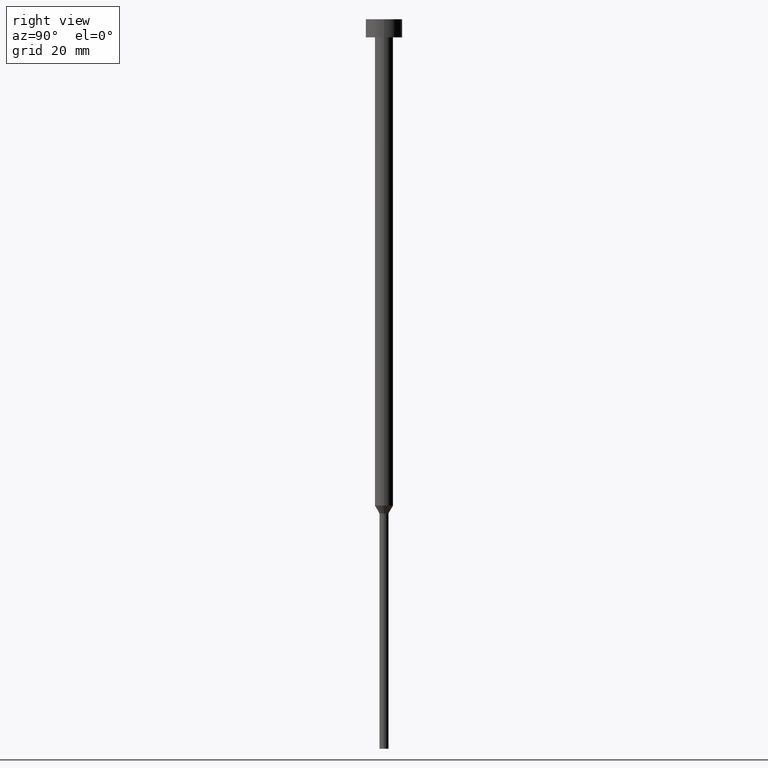
[diagram: clean part render]
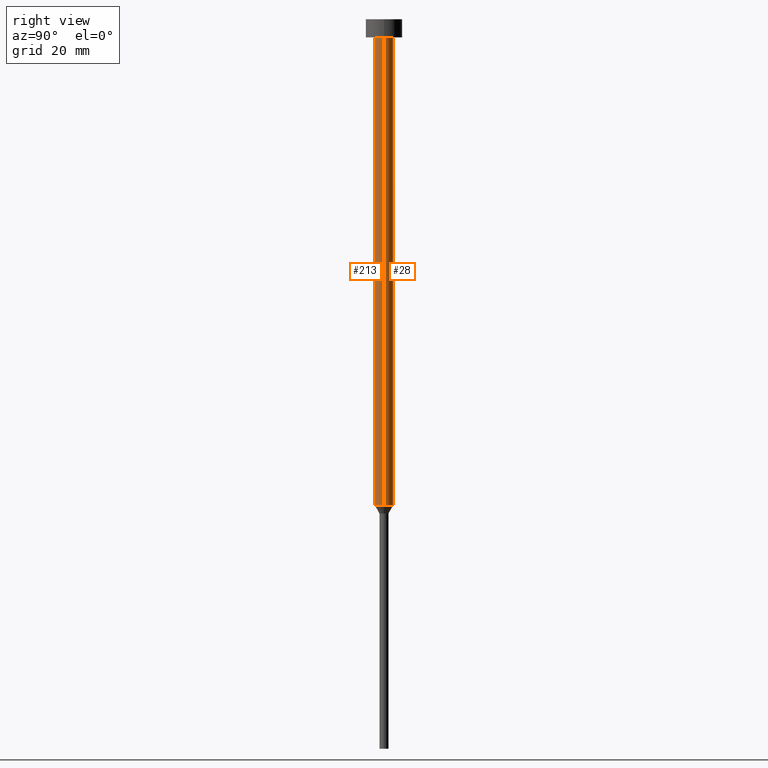
[diagram: same view with one multi-face feature highlighted, each face labeled with its STEP entity id]
A machine part, right view. The highlighted faces form ONE feature: a constant-radius fillet chain: 2 tangent blend faces with common blend radius 1.5 mm. The faces share edges in the B-rep.
Their STEP definitions:
[1] entity #28 (Cylinder):
#14 = CARTESIAN_POINT ( 'NONE',  ( -1.500000000000000000, 1.836970198721029934E-16, -80.00000000000000000 ) ) ;
#22 = EDGE_LOOP ( 'NONE', ( #348, #291, #244, #162 ) ) ;
#28 = ADVANCED_FACE ( 'NONE', ( #243 ), #52, .T. ) ;
#43 = CARTESIAN_POINT ( 'NONE',  ( 1.500000000000000000, 0.000000000000000000, 0.000000000000000000 ) ) ;
#52 = CYLINDRICAL_SURFACE ( 'NONE', #92, 1.500000000000000000 ) ;
#67 = DIRECTION ( 'NONE',  ( -0.000000000000000000, -0.000000000000000000, 1.000000000000000000 ) ) ;
#83 = LINE ( 'NONE', #233, #314 ) ;
#88 = EDGE_CURVE ( 'NONE', #147, #101, #320, .T. ) ;
#92 = AXIS2_PLACEMENT_3D ( 'NONE', #111, #168, #255 ) ;
#94 = AXIS2_PLACEMENT_3D ( 'NONE', #123, #242, #181 ) ;
#100 = VERTEX_POINT ( 'NONE', #14 ) ;
#101 = VERTEX_POINT ( 'NONE', #249 ) ;
#109 = DIRECTION ( 'NONE',  ( -0.000000000000000000, -0.000000000000000000, 1.000000000000000000 ) ) ;
#110 = VECTOR ( 'NONE', #67, 1000.000000000000000 ) ;
#111 = CARTESIAN_POINT ( 'NONE',  ( 0.000000000000000000, 0.000000000000000000, 0.000000000000000000 ) ) ;
#113 = CARTESIAN_POINT ( 'NONE',  ( 1.500000000000000000, 0.000000000000000000, -80.00000000000000000 ) ) ;
#118 = EDGE_CURVE ( 'NONE', #101, #297, #133, .T. ) ;
#123 = CARTESIAN_POINT ( 'NONE',  ( 0.000000000000000000, 0.000000000000000000, -3.000000000000000444 ) ) ;
#133 = CIRCLE ( 'NONE', #94, 1.500000000000000000 ) ;
#145 = EDGE_CURVE ( 'NONE', #147, #100, #352, .T. ) ;
#147 = VERTEX_POINT ( 'NONE', #113 ) ;
#162 = ORIENTED_EDGE ( 'NONE', *, *, #88, .F. ) ;
#168 = DIRECTION ( 'NONE',  ( -0.000000000000000000, -0.000000000000000000, 1.000000000000000000 ) ) ;
#181 = DIRECTION ( 'NONE',  ( 1.000000000000000000, 0.000000000000000000, 0.000000000000000000 ) ) ;
#184 = EDGE_CURVE ( 'NONE', #100, #297, #83, .T. ) ;
#228 = CARTESIAN_POINT ( 'NONE',  ( 0.000000000000000000, 0.000000000000000000, -80.00000000000000000 ) ) ;
#233 = CARTESIAN_POINT ( 'NONE',  ( -1.500000000000000000, 1.836970198721029934E-16, 0.000000000000000000 ) ) ;
#242 = DIRECTION ( 'NONE',  ( -0.000000000000000000, -0.000000000000000000, 1.000000000000000000 ) ) ;
#243 = FACE_OUTER_BOUND ( 'NONE', #22, .T. ) ;
#244 = ORIENTED_EDGE ( 'NONE', *, *, #118, .F. ) ;
#249 = CARTESIAN_POINT ( 'NONE',  ( 1.500000000000000000, 0.000000000000000000, -3.000000000000000444 ) ) ;
#255 = DIRECTION ( 'NONE',  ( 1.000000000000000000, 0.000000000000000000, 0.000000000000000000 ) ) ;
#258 = DIRECTION ( 'NONE',  ( 1.000000000000000000, 0.000000000000000000, 0.000000000000000000 ) ) ;
#270 = AXIS2_PLACEMENT_3D ( 'NONE', #228, #109, #258 ) ;
#291 = ORIENTED_EDGE ( 'NONE', *, *, #184, .T. ) ;
#297 = VERTEX_POINT ( 'NONE', #331 ) ;
#314 = VECTOR ( 'NONE', #330, 1000.000000000000000 ) ;
#320 = LINE ( 'NONE', #43, #110 ) ;
#330 = DIRECTION ( 'NONE',  ( -0.000000000000000000, -0.000000000000000000, 1.000000000000000000 ) ) ;
#331 = CARTESIAN_POINT ( 'NONE',  ( -1.500000000000000000, 1.836970198721029934E-16, -3.000000000000000444 ) ) ;
#348 = ORIENTED_EDGE ( 'NONE', *, *, #145, .T. ) ;
#352 = CIRCLE ( 'NONE', #270, 1.500000000000000000 ) ;
[2] entity #213 (Cylinder):
#14 = CARTESIAN_POINT ( 'NONE',  ( -1.500000000000000000, 1.836970198721029934E-16, -80.00000000000000000 ) ) ;
#40 = CIRCLE ( 'NONE', #182, 1.500000000000000000 ) ;
#43 = CARTESIAN_POINT ( 'NONE',  ( 1.500000000000000000, 0.000000000000000000, 0.000000000000000000 ) ) ;
#45 = ORIENTED_EDGE ( 'NONE', *, *, #191, .F. ) ;
#59 = CARTESIAN_POINT ( 'NONE',  ( 0.000000000000000000, 0.000000000000000000, 0.000000000000000000 ) ) ;
#61 = DIRECTION ( 'NONE',  ( 1.000000000000000000, 0.000000000000000000, 0.000000000000000000 ) ) ;
#67 = DIRECTION ( 'NONE',  ( -0.000000000000000000, -0.000000000000000000, 1.000000000000000000 ) ) ;
#77 = DIRECTION ( 'NONE',  ( -0.000000000000000000, -0.000000000000000000, 1.000000000000000000 ) ) ;
#83 = LINE ( 'NONE', #233, #314 ) ;
#86 = AXIS2_PLACEMENT_3D ( 'NONE', #59, #261, #61 ) ;
#88 = EDGE_CURVE ( 'NONE', #147, #101, #320, .T. ) ;
#100 = VERTEX_POINT ( 'NONE', #14 ) ;
#101 = VERTEX_POINT ( 'NONE', #249 ) ;
#104 = DIRECTION ( 'NONE',  ( 1.000000000000000000, 0.000000000000000000, 0.000000000000000000 ) ) ;
#110 = VECTOR ( 'NONE', #67, 1000.000000000000000 ) ;
#113 = CARTESIAN_POINT ( 'NONE',  ( 1.500000000000000000, 0.000000000000000000, -80.00000000000000000 ) ) ;
#131 = EDGE_CURVE ( 'NONE', #100, #147, #170, .T. ) ;
#135 = EDGE_LOOP ( 'NONE', ( #325, #234, #286, #45 ) ) ;
#141 = AXIS2_PLACEMENT_3D ( 'NONE', #157, #283, #254 ) ;
#146 = FACE_OUTER_BOUND ( 'NONE', #135, .T. ) ;
#147 = VERTEX_POINT ( 'NONE', #113 ) ;
#157 = CARTESIAN_POINT ( 'NONE',  ( 0.000000000000000000, 0.000000000000000000, -80.00000000000000000 ) ) ;
#170 = CIRCLE ( 'NONE', #141, 1.500000000000000000 ) ;
#182 = AXIS2_PLACEMENT_3D ( 'NONE', #259, #77, #104 ) ;
#184 = EDGE_CURVE ( 'NONE', #100, #297, #83, .T. ) ;
#191 = EDGE_CURVE ( 'NONE', #297, #101, #40, .T. ) ;
#213 = ADVANCED_FACE ( 'NONE', ( #146 ), #337, .T. ) ;
#233 = CARTESIAN_POINT ( 'NONE',  ( -1.500000000000000000, 1.836970198721029934E-16, 0.000000000000000000 ) ) ;
#234 = ORIENTED_EDGE ( 'NONE', *, *, #131, .T. ) ;
#249 = CARTESIAN_POINT ( 'NONE',  ( 1.500000000000000000, 0.000000000000000000, -3.000000000000000444 ) ) ;
#254 = DIRECTION ( 'NONE',  ( 1.000000000000000000, 0.000000000000000000, 0.000000000000000000 ) ) ;
#259 = CARTESIAN_POINT ( 'NONE',  ( 0.000000000000000000, 0.000000000000000000, -3.000000000000000444 ) ) ;
#261 = DIRECTION ( 'NONE',  ( -0.000000000000000000, -0.000000000000000000, 1.000000000000000000 ) ) ;
#283 = DIRECTION ( 'NONE',  ( -0.000000000000000000, -0.000000000000000000, 1.000000000000000000 ) ) ;
#286 = ORIENTED_EDGE ( 'NONE', *, *, #88, .T. ) ;
#297 = VERTEX_POINT ( 'NONE', #331 ) ;
#314 = VECTOR ( 'NONE', #330, 1000.000000000000000 ) ;
#320 = LINE ( 'NONE', #43, #110 ) ;
#325 = ORIENTED_EDGE ( 'NONE', *, *, #184, .F. ) ;
#330 = DIRECTION ( 'NONE',  ( -0.000000000000000000, -0.000000000000000000, 1.000000000000000000 ) ) ;
#331 = CARTESIAN_POINT ( 'NONE',  ( -1.500000000000000000, 1.836970198721029934E-16, -3.000000000000000444 ) ) ;
#337 = CYLINDRICAL_SURFACE ( 'NONE', #86, 1.500000000000000000 ) ;